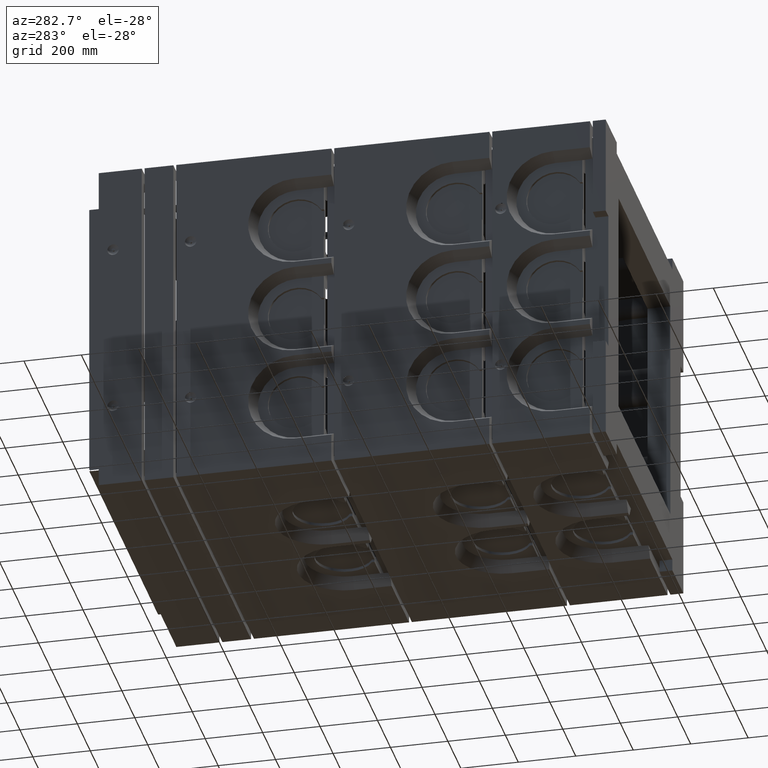
[diagram: clean part render]
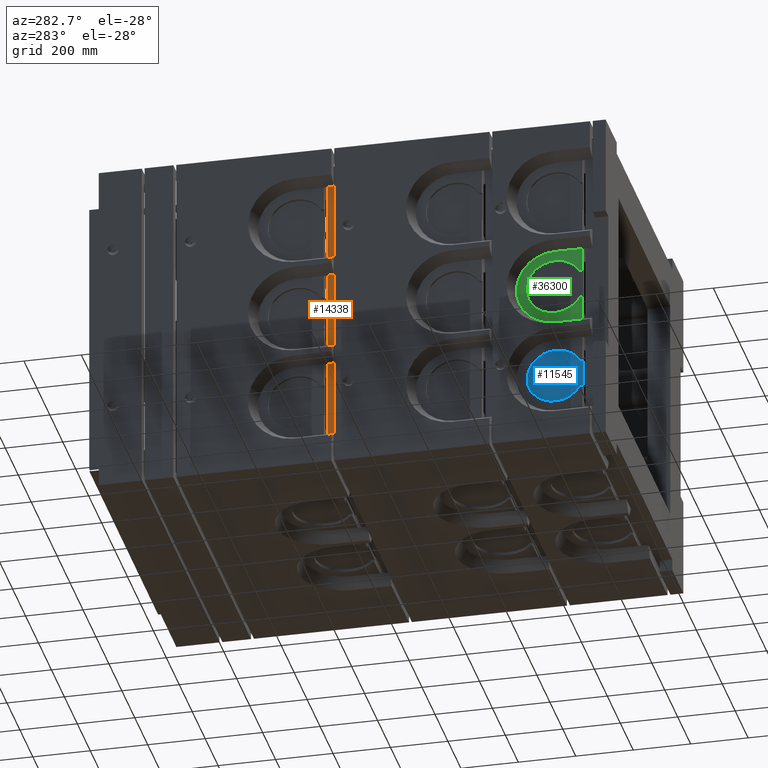
[diagram: same view with three faces highlighted in distinct colors, each labeled with its STEP entity id]
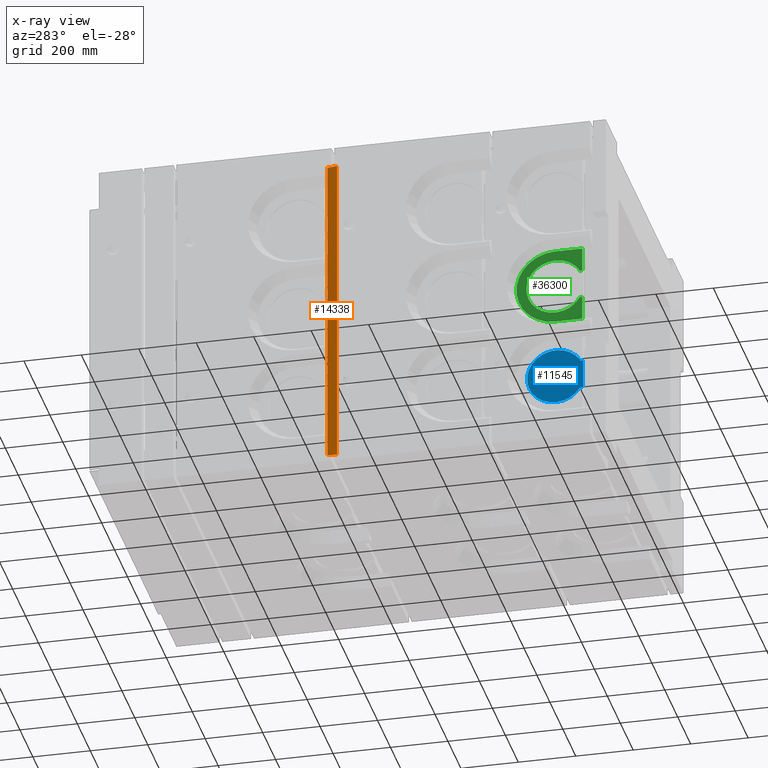
[diagram: x-ray of the same camera — body ghosted, the three highlighted faces saturated]
A machine part, auxiliary view with three faces highlighted in distinct colors.
The next image is the same camera in x-ray (body ghosted, the three faces saturated) — at least one of them is partly hidden behind the body in this view.
Their STEP definitions:

[orange] entity #14338 — the highlighted planar face has unit normal (0.9984, -0.057, 0).
#1492 = LINE ( 'NONE', #42373, #36490 ) ;
#1946 = EDGE_CURVE ( 'NONE', #16844, #31158, #28412, .T. ) ;
#2194 = DIRECTION ( 'NONE',  ( 0.9983713344239767418, -0.05704979053851216148, 4.609909154195348224E-16 ) ) ;
#3828 = ORIENTED_EDGE ( 'NONE', *, *, #39196, .T. ) ;
#5342 = DIRECTION ( 'NONE',  ( 0.05704979053851216148, 0.9983713344239767418, 2.634233802397336154E-17 ) ) ;
#6565 = DIRECTION ( 'NONE',  ( -4.617429402512937596E-16, 1.665334536937734811E-16, 1.000000000000000000 ) ) ;
#8495 = DIRECTION ( 'NONE',  ( -4.617429402512937596E-16, 1.665334536937734811E-16, 1.000000000000000000 ) ) ;
#9217 = PLANE ( 'NONE',  #44667 ) ;
#9486 = FACE_OUTER_BOUND ( 'NONE', #23744, .T. ) ;
#11878 = CARTESIAN_POINT ( 'NONE',  ( -553.0000000000006821, 979.9999999999996589, 553.0000000000002274 ) ) ;
#13894 = ORIENTED_EDGE ( 'NONE', *, *, #15531, .F. ) ;
#14338 = ADVANCED_FACE ( 'NONE', ( #9486 ), #9217, .F. ) ;
#15147 = CARTESIAN_POINT ( 'NONE',  ( -553.0000000000001137, 979.9999999999994316, -602.0000000000002274 ) ) ;
#15531 = EDGE_CURVE ( 'NONE', #31158, #44722, #42555, .T. ) ;
#16844 = VERTEX_POINT ( 'NONE', #42436 ) ;
#19692 = CARTESIAN_POINT ( 'NONE',  ( -553.1524736415249208, 977.3317112733165004, -553.1524736415249208 ) ) ;
#21974 = DIRECTION ( 'NONE',  ( 0.05695717718111662636, 0.9967506006695544540, -0.05695717718111736882 ) ) ;
#23744 = EDGE_LOOP ( 'NONE', ( #37809, #3828, #13894, #35000 ) ) ;
#27698 = CARTESIAN_POINT ( 'NONE',  ( -553.0000000000001137, 979.9999999999994316, -553.0000000000001137 ) ) ;
#28412 = LINE ( 'NONE', #19692, #36771 ) ;
#29170 = VERTEX_POINT ( 'NONE', #40861 ) ;
#31158 = VERTEX_POINT ( 'NONE', #27698 ) ;
#33159 = VECTOR ( 'NONE', #8495, 1000.000000000000000 ) ;
#34220 = CARTESIAN_POINT ( 'NONE',  ( -553.0000000000001137, 979.9999999999994316, -602.0000000000002274 ) ) ;
#34367 = EDGE_CURVE ( 'NONE', #16844, #29170, #1492, .T. ) ;
#34610 = DIRECTION ( 'NONE',  ( 0.05695717718111657085, 0.9967506006695544540, 0.05695717718111603656 ) ) ;
#35000 = ORIENTED_EDGE ( 'NONE', *, *, #1946, .F. ) ;
#36490 = VECTOR ( 'NONE', #6565, 1000.000000000000000 ) ;
#36771 = VECTOR ( 'NONE', #34610, 1000.000000000000114 ) ;
#36854 = CARTESIAN_POINT ( 'NONE',  ( -553.0000000000006821, 979.9999999999996589, 553.0000000000002274 ) ) ;
#37460 = LINE ( 'NONE', #11878, #44614 ) ;
#37809 = ORIENTED_EDGE ( 'NONE', *, *, #34367, .T. ) ;
#39196 = EDGE_CURVE ( 'NONE', #29170, #44722, #37460, .T. ) ;
#40861 = CARTESIAN_POINT ( 'NONE',  ( -555.0000000000005684, 944.9999999999996589, 555.0000000000000000 ) ) ;
#42373 = CARTESIAN_POINT ( 'NONE',  ( -555.0000000000001137, 944.9999999999994316, -555.0000000000001137 ) ) ;
#42436 = CARTESIAN_POINT ( 'NONE',  ( -555.0000000000001137, 944.9999999999994316, -555.0000000000001137 ) ) ;
#42555 = LINE ( 'NONE', #15147, #33159 ) ;
#44614 = VECTOR ( 'NONE', #21974, 1000.000000000000000 ) ;
#44667 = AXIS2_PLACEMENT_3D ( 'NONE', #34220, #2194, #5342 ) ;
#44722 = VERTEX_POINT ( 'NONE', #36854 ) ;

[blue] entity #11545 — the highlighted planar face has unit normal (-1, 0, 0).
#5458 = EDGE_CURVE ( 'NONE', #14079, #7285, #23531, .T. ) ;
#6602 = FACE_OUTER_BOUND ( 'NONE', #29620, .T. ) ;
#7285 = VERTEX_POINT ( 'NONE', #17735 ) ;
#7426 = CARTESIAN_POINT ( 'NONE',  ( -550.0000000000000000, 98.98255990788845793, -391.0000000000000000 ) ) ;
#7457 = VERTEX_POINT ( 'NONE', #25609 ) ;
#8123 = ORIENTED_EDGE ( 'NONE', *, *, #41068, .T. ) ;
#11545 = ADVANCED_FACE ( 'NONE', ( #6602 ), #13225, .T. ) ;
#12370 = VERTEX_POINT ( 'NONE', #18457 ) ;
#13225 = PLANE ( 'NONE',  #44317 ) ;
#13969 = VECTOR ( 'NONE', #22801, 1000.000000000000000 ) ;
#14079 = VERTEX_POINT ( 'NONE', #42903 ) ;
#14106 = VECTOR ( 'NONE', #29204, 1000.000000000000000 ) ;
#14447 = CARTESIAN_POINT ( 'NONE',  ( -550.0000000000000000, 90.00000000000000000, 561.5000000000000000 ) ) ;
#14539 = DIRECTION ( 'NONE',  ( 0.0000000000000000000, -1.000000000000000000, 0.0000000000000000000 ) ) ;
#16691 = DIRECTION ( 'NONE',  ( -1.000000000000000000, 0.0000000000000000000, 0.0000000000000000000 ) ) ;
#17735 = CARTESIAN_POINT ( 'NONE',  ( -550.0000000000000000, 90.00000000000000000, -391.0000000000000000 ) ) ;
#18457 = CARTESIAN_POINT ( 'NONE',  ( -550.0000000000000000, 98.98255990788845793, -288.9999999999999432 ) ) ;
#20187 = DIRECTION ( 'NONE',  ( -1.000000000000000000, 0.0000000000000000000, 0.0000000000000000000 ) ) ;
#21380 = AXIS2_PLACEMENT_3D ( 'NONE', #44006, #16691, #42266 ) ;
#22801 = DIRECTION ( 'NONE',  ( 0.0000000000000000000, 1.000000000000000000, 1.480297366166875650E-15 ) ) ;
#23531 = LINE ( 'NONE', #14447, #14106 ) ;
#24305 = CIRCLE ( 'NONE', #21380, 100.0000000000000000 ) ;
#25503 = ORIENTED_EDGE ( 'NONE', *, *, #42412, .T. ) ;
#25609 = CARTESIAN_POINT ( 'NONE',  ( -550.0000000000000000, 98.98255990788845793, -391.0000000000000000 ) ) ;
#27202 = CARTESIAN_POINT ( 'NONE',  ( -550.0000000000000000, 185.0000000000000000, -339.9999999999999432 ) ) ;
#28439 = VECTOR ( 'NONE', #14539, 1000.000000000000000 ) ;
#29204 = DIRECTION ( 'NONE',  ( 0.0000000000000000000, 0.0000000000000000000, -1.000000000000000000 ) ) ;
#29620 = EDGE_LOOP ( 'NONE', ( #29907, #25503, #8123, #42584 ) ) ;
#29907 = ORIENTED_EDGE ( 'NONE', *, *, #36280, .T. ) ;
#33985 = LINE ( 'NONE', #43702, #13969 ) ;
#34350 = DIRECTION ( 'NONE',  ( 0.0000000000000000000, 0.0000000000000000000, 1.000000000000000000 ) ) ;
#35698 = LINE ( 'NONE', #7426, #28439 ) ;
#36280 = EDGE_CURVE ( 'NONE', #14079, #12370, #33985, .T. ) ;
#41068 = EDGE_CURVE ( 'NONE', #7457, #7285, #35698, .T. ) ;
#42266 = DIRECTION ( 'NONE',  ( 0.0000000000000000000, 0.0000000000000000000, 1.000000000000000000 ) ) ;
#42412 = EDGE_CURVE ( 'NONE', #12370, #7457, #24305, .T. ) ;
#42584 = ORIENTED_EDGE ( 'NONE', *, *, #5458, .F. ) ;
#42903 = CARTESIAN_POINT ( 'NONE',  ( -550.0000000000000000, 90.00000000000000000, -288.9999999999999432 ) ) ;
#43702 = CARTESIAN_POINT ( 'NONE',  ( -550.0000000000000000, 98.98255990788845793, -288.9999999999999432 ) ) ;
#44006 = CARTESIAN_POINT ( 'NONE',  ( -550.0000000000000000, 185.0000000000000000, -339.9999999999999432 ) ) ;
#44317 = AXIS2_PLACEMENT_3D ( 'NONE', #27202, #20187, #34350 ) ;

[green] entity #36300 — the highlighted planar face has unit normal (-1, 0, 0).
#639 = CARTESIAN_POINT ( 'NONE',  ( -560.0000000000000000, 185.0000000000000000, 51.00000000000004263 ) ) ;
#719 = VECTOR ( 'NONE', #32981, 1000.000000000000000 ) ;
#867 = CARTESIAN_POINT ( 'NONE',  ( -560.0000000000000000, 90.00000000000000000, -135.0052259236268526 ) ) ;
#1947 = LINE ( 'NONE', #639, #43582 ) ;
#2596 = CARTESIAN_POINT ( 'NONE',  ( -560.0000000000000000, 185.0000000000000000, -135.0052259236268526 ) ) ;
#3100 = DIRECTION ( 'NONE',  ( -1.000000000000000000, 0.0000000000000000000, 0.0000000000000000000 ) ) ;
#3744 = LINE ( 'NONE', #26948, #39875 ) ;
#4213 = EDGE_CURVE ( 'NONE', #41539, #8598, #1947, .T. ) ;
#5102 = VERTEX_POINT ( 'NONE', #35444 ) ;
#6121 = ORIENTED_EDGE ( 'NONE', *, *, #45630, .F. ) ;
#7019 = EDGE_CURVE ( 'NONE', #8598, #8465, #19899, .T. ) ;
#7899 = VERTEX_POINT ( 'NONE', #41698 ) ;
#8465 = VERTEX_POINT ( 'NONE', #28877 ) ;
#8598 = VERTEX_POINT ( 'NONE', #42970 ) ;
#8826 = ORIENTED_EDGE ( 'NONE', *, *, #9609, .T. ) ;
#9609 = EDGE_CURVE ( 'NONE', #21989, #7899, #19592, .T. ) ;
#9780 = DIRECTION ( 'NONE',  ( 0.0000000000000000000, -1.000000000000000000, 0.0000000000000000000 ) ) ;
#9802 = EDGE_CURVE ( 'NONE', #7899, #31547, #39025, .T. ) ;
#10825 = VERTEX_POINT ( 'NONE', #867 ) ;
#11793 = EDGE_CURVE ( 'NONE', #8465, #5102, #41501, .T. ) ;
#12467 = AXIS2_PLACEMENT_3D ( 'NONE', #15348, #36934, #26218 ) ;
#12957 = DIRECTION ( 'NONE',  ( 0.0000000000000000000, 0.0000000000000000000, -1.000000000000000000 ) ) ;
#13123 = CARTESIAN_POINT ( 'NONE',  ( -560.0000000000000000, 90.00000000000000000, 51.00000000000004263 ) ) ;
#15344 = AXIS2_PLACEMENT_3D ( 'NONE', #26446, #37435, #29994 ) ;
#15348 = CARTESIAN_POINT ( 'NONE',  ( -560.0000000000000000, 185.0000000000000000, 0.0000000000000000000 ) ) ;
#15870 = ORIENTED_EDGE ( 'NONE', *, *, #34784, .T. ) ;
#15898 = VECTOR ( 'NONE', #9780, 1000.000000000000000 ) ;
#16515 = EDGE_CURVE ( 'NONE', #5102, #10825, #41388, .T. ) ;
#17279 = CARTESIAN_POINT ( 'NONE',  ( -560.0000000000000000, 185.0000000000000000, 0.0000000000000000000 ) ) ;
#18038 = DIRECTION ( 'NONE',  ( 0.0000000000000000000, -1.000000000000000000, 0.0000000000000000000 ) ) ;
#18158 = LINE ( 'NONE', #2596, #15898 ) ;
#18508 = CARTESIAN_POINT ( 'NONE',  ( -560.0000000000000000, 98.98255990788840109, -50.99999999999993605 ) ) ;
#18934 = PLANE ( 'NONE',  #12467 ) ;
#19592 = LINE ( 'NONE', #26145, #719 ) ;
#19899 = CIRCLE ( 'NONE', #15344, 100.0000000000000000 ) ;
#20524 = ORIENTED_EDGE ( 'NONE', *, *, #16515, .F. ) ;
#21989 = VERTEX_POINT ( 'NONE', #35371 ) ;
#22150 = EDGE_LOOP ( 'NONE', ( #23185, #6121, #8826, #37984, #15870, #20524, #37799, #45680 ) ) ;
#22325 = CARTESIAN_POINT ( 'NONE',  ( -560.0000000000000000, 90.00000000000000000, 561.5000000000000000 ) ) ;
#22915 = AXIS2_PLACEMENT_3D ( 'NONE', #17279, #3100, #41760 ) ;
#23185 = ORIENTED_EDGE ( 'NONE', *, *, #4213, .F. ) ;
#24526 = FACE_OUTER_BOUND ( 'NONE', #22150, .T. ) ;
#25753 = DIRECTION ( 'NONE',  ( 0.0000000000000000000, 0.0000000000000000000, -1.000000000000000000 ) ) ;
#26145 = CARTESIAN_POINT ( 'NONE',  ( -560.0000000000000000, 185.0000000000000000, 135.0052259236269094 ) ) ;
#26218 = DIRECTION ( 'NONE',  ( 0.0000000000000000000, 0.0000000000000000000, 1.000000000000000000 ) ) ;
#26446 = CARTESIAN_POINT ( 'NONE',  ( -560.0000000000000000, 185.0000000000000000, 0.0000000000000000000 ) ) ;
#26948 = CARTESIAN_POINT ( 'NONE',  ( -560.0000000000000000, 90.00000000000000000, 561.5000000000000000 ) ) ;
#28877 = CARTESIAN_POINT ( 'NONE',  ( -560.0000000000000000, 98.98255990788840109, -50.99999999999993605 ) ) ;
#29994 = DIRECTION ( 'NONE',  ( 0.0000000000000000000, 0.0000000000000000000, 1.000000000000000000 ) ) ;
#30957 = VECTOR ( 'NONE', #18038, 1000.000000000000000 ) ;
#31547 = VERTEX_POINT ( 'NONE', #34333 ) ;
#32981 = DIRECTION ( 'NONE',  ( 0.0000000000000000000, 1.000000000000000000, 0.0000000000000000000 ) ) ;
#34333 = CARTESIAN_POINT ( 'NONE',  ( -560.0000000000000000, 185.0000000000000284, -135.0052259236268526 ) ) ;
#34784 = EDGE_CURVE ( 'NONE', #31547, #10825, #18158, .T. ) ;
#35371 = CARTESIAN_POINT ( 'NONE',  ( -560.0000000000000000, 90.00000000000000000, 135.0052259236269094 ) ) ;
#35444 = CARTESIAN_POINT ( 'NONE',  ( -560.0000000000000000, 90.00000000000000000, -50.99999999999993605 ) ) ;
#36300 = ADVANCED_FACE ( 'NONE', ( #24526 ), #18934, .T. ) ;
#36934 = DIRECTION ( 'NONE',  ( -1.000000000000000000, 0.0000000000000000000, 0.0000000000000000000 ) ) ;
#37435 = DIRECTION ( 'NONE',  ( -1.000000000000000000, 0.0000000000000000000, 0.0000000000000000000 ) ) ;
#37799 = ORIENTED_EDGE ( 'NONE', *, *, #11793, .F. ) ;
#37984 = ORIENTED_EDGE ( 'NONE', *, *, #9802, .T. ) ;
#38052 = VECTOR ( 'NONE', #25753, 1000.000000000000000 ) ;
#39025 = CIRCLE ( 'NONE', #22915, 135.0052259236268526 ) ;
#39875 = VECTOR ( 'NONE', #12957, 1000.000000000000000 ) ;
#41388 = LINE ( 'NONE', #22325, #38052 ) ;
#41501 = LINE ( 'NONE', #18508, #30957 ) ;
#41539 = VERTEX_POINT ( 'NONE', #13123 ) ;
#41698 = CARTESIAN_POINT ( 'NONE',  ( -560.0000000000000000, 185.0000000000000284, 135.0052259236269094 ) ) ;
#41760 = DIRECTION ( 'NONE',  ( 0.0000000000000000000, 0.0000000000000000000, 1.000000000000000000 ) ) ;
#42833 = DIRECTION ( 'NONE',  ( 0.0000000000000000000, 1.000000000000000000, 0.0000000000000000000 ) ) ;
#42970 = CARTESIAN_POINT ( 'NONE',  ( -560.0000000000000000, 98.98255990788845793, 51.00000000000004263 ) ) ;
#43582 = VECTOR ( 'NONE', #42833, 1000.000000000000000 ) ;
#45630 = EDGE_CURVE ( 'NONE', #21989, #41539, #3744, .T. ) ;
#45680 = ORIENTED_EDGE ( 'NONE', *, *, #7019, .F. ) ;